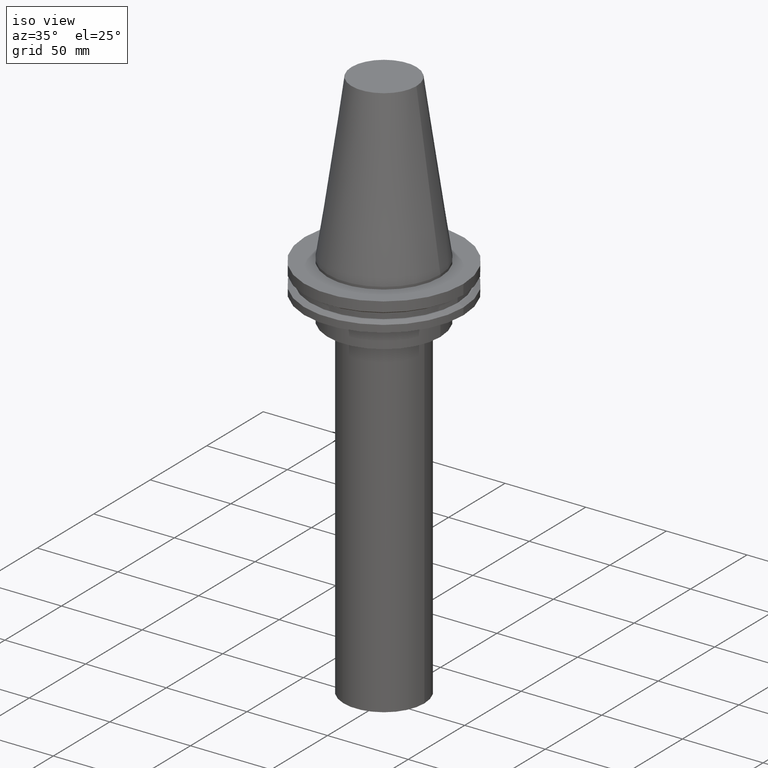
[diagram: clean part render]
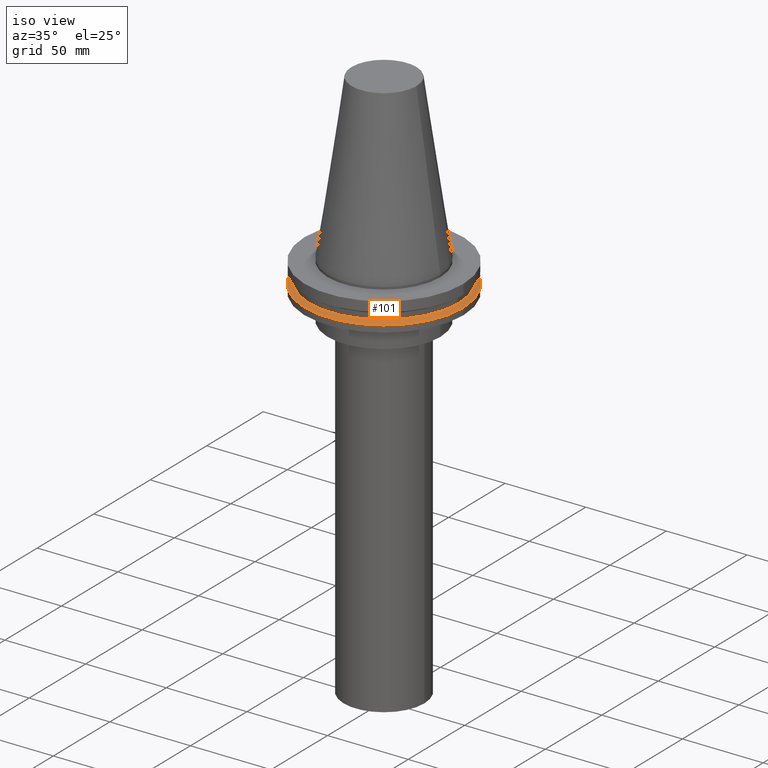
[diagram: same view with one face highlighted and labeled with its STEP entity id]
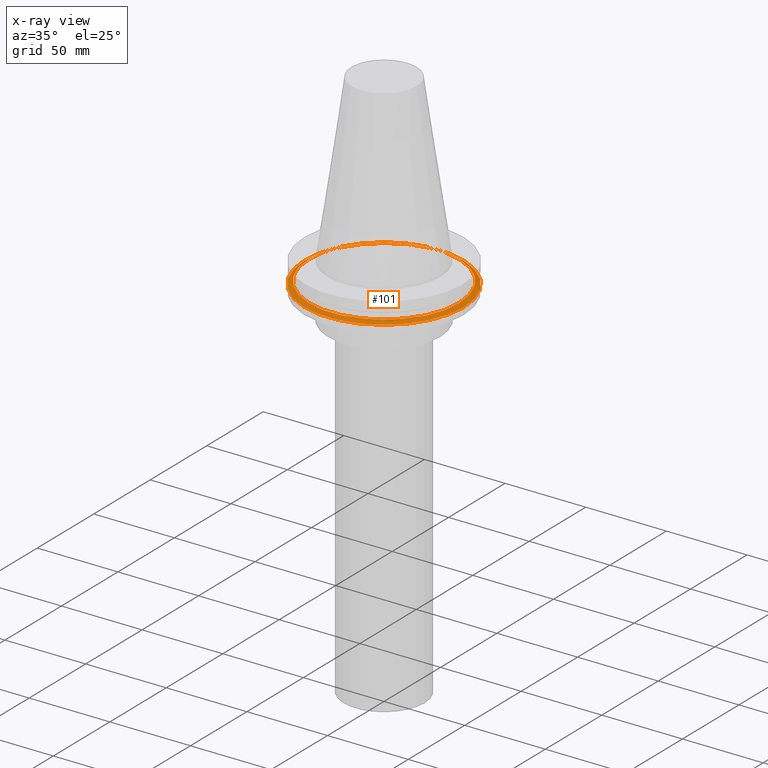
[diagram: x-ray of the same camera — body ghosted, the highlighted face saturated]
A machine part, iso view. The second image highlights one B-rep face of the part: STEP entity #101.
The next image is the same camera in x-ray: the body ghosted, the highlighted face saturated — about 3% of this face is hidden behind the body in this view.
In plain terms, the highlighted conical surface has half-angle 60 deg.
Its self-contained STEP definition (entity closure, byte-faithful):
#8 = CARTESIAN_POINT ( 'NONE',  ( 0.000000000000000000, 0.000000000000000000, -13.05499999999999794 ) ) ;
#24 = DIRECTION ( 'NONE',  ( 1.000000000000000000, 0.000000000000000000, 0.000000000000000000 ) ) ;
#33 = EDGE_CURVE ( 'NONE', #58, #58, #355, .T. ) ;
#42 = EDGE_LOOP ( 'NONE', ( #316 ) ) ;
#58 = VERTEX_POINT ( 'NONE', #391 ) ;
#92 = ORIENTED_EDGE ( 'NONE', *, *, #33, .F. ) ;
#97 = EDGE_LOOP ( 'NONE', ( #92 ) ) ;
#101 = ADVANCED_FACE ( 'NONE', ( #266, #292 ), #135, .T. ) ;
#113 = CARTESIAN_POINT ( 'NONE',  ( 0.000000000000000000, 0.000000000000000000, -14.65761014474876944 ) ) ;
#127 = CARTESIAN_POINT ( 'NONE',  ( 0.000000000000000000, 0.000000000000000000, -14.65761014474876944 ) ) ;
#128 = DIRECTION ( 'NONE',  ( 1.000000000000000000, 0.000000000000000000, 0.000000000000000000 ) ) ;
#135 = CONICAL_SURFACE ( 'NONE', #291, 49.21499999999998920, 1.047197551196554333 ) ;
#201 = DIRECTION ( 'NONE',  ( 0.000000000000000000, 0.000000000000000000, -1.000000000000000000 ) ) ;
#219 = DIRECTION ( 'NONE',  ( -0.000000000000000000, -0.000000000000000000, 1.000000000000000000 ) ) ;
#254 = CIRCLE ( 'NONE', #388, 49.21499999999998920 ) ;
#260 = AXIS2_PLACEMENT_3D ( 'NONE', #8, #378, #128 ) ;
#266 = FACE_BOUND ( 'NONE', #97, .T. ) ;
#269 = DIRECTION ( 'NONE',  ( -1.000000000000000000, 0.000000000000000000, 0.000000000000000000 ) ) ;
#291 = AXIS2_PLACEMENT_3D ( 'NONE', #113, #201, #269 ) ;
#292 = FACE_OUTER_BOUND ( 'NONE', #42, .T. ) ;
#314 = EDGE_CURVE ( 'NONE', #366, #366, #254, .T. ) ;
#316 = ORIENTED_EDGE ( 'NONE', *, *, #314, .T. ) ;
#355 = CIRCLE ( 'NONE', #260, 46.43919780457007818 ) ;
#366 = VERTEX_POINT ( 'NONE', #377 ) ;
#377 = CARTESIAN_POINT ( 'NONE',  ( 49.21499999999998920, 0.000000000000000000, -14.65761014474876944 ) ) ;
#378 = DIRECTION ( 'NONE',  ( -0.000000000000000000, -0.000000000000000000, 1.000000000000000000 ) ) ;
#388 = AXIS2_PLACEMENT_3D ( 'NONE', #127, #219, #24 ) ;
#391 = CARTESIAN_POINT ( 'NONE',  ( 46.43919780457007818, 0.000000000000000000, -13.05499999999999794 ) ) ;